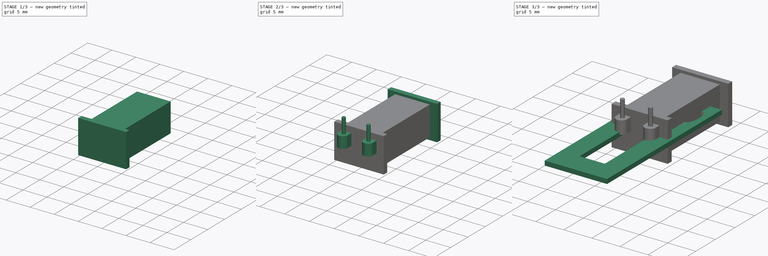
[diagram: build sequence overview — one tinted view per stage of 3, left to right]
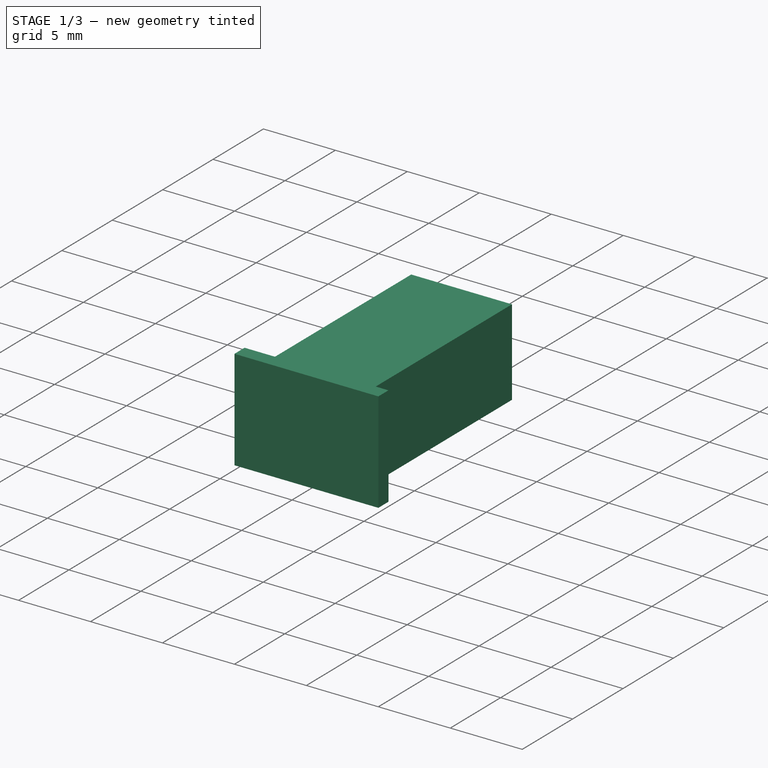
[diagram: stage 1 of 3 — iso view after this stage's code; geometry added in this stage tinted green]
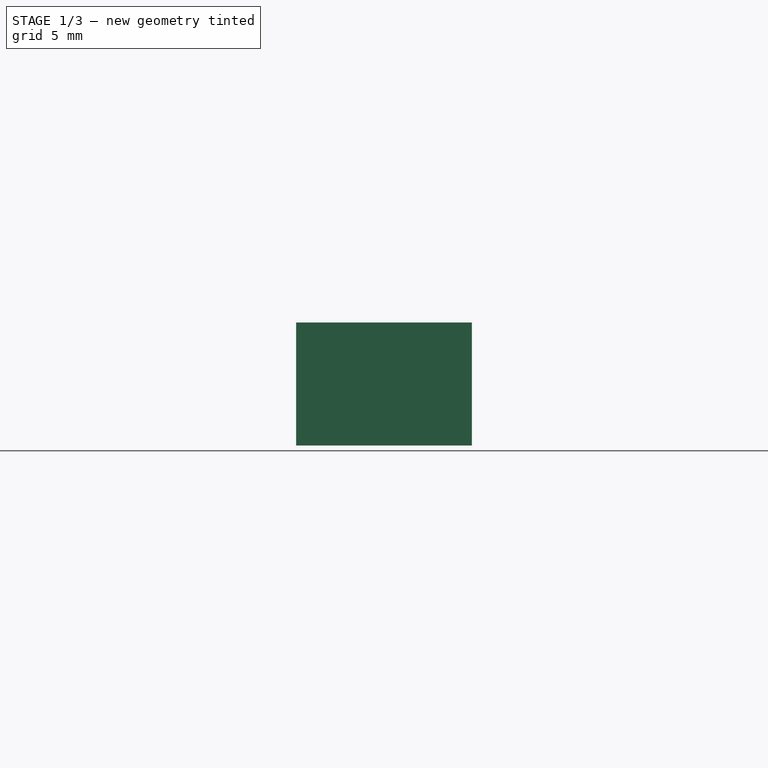
[diagram: stage 1 of 3 — front view after this stage's code; geometry added in this stage tinted green]
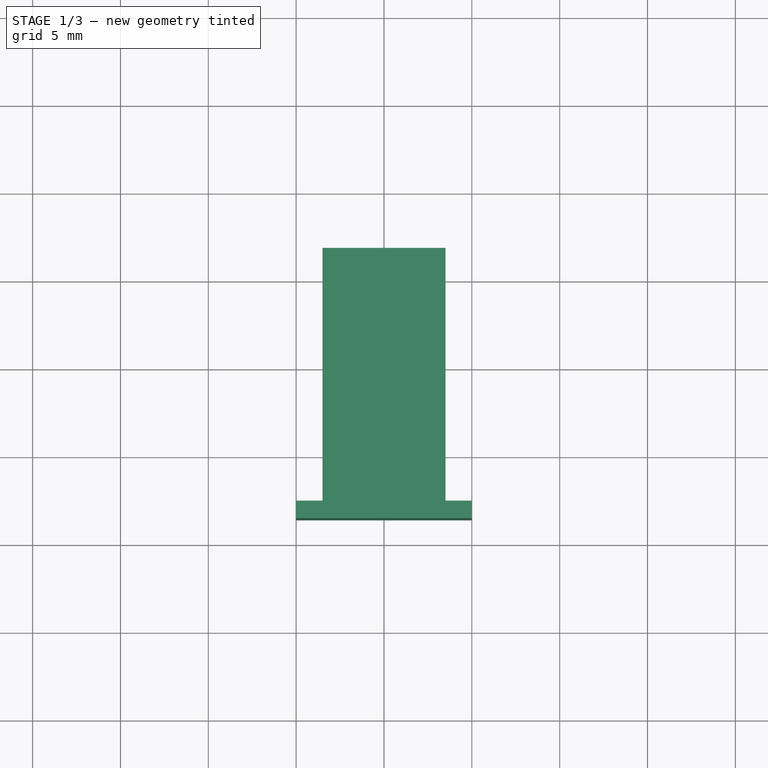
[diagram: stage 1 of 3 — top view after this stage's code; geometry added in this stage tinted green]
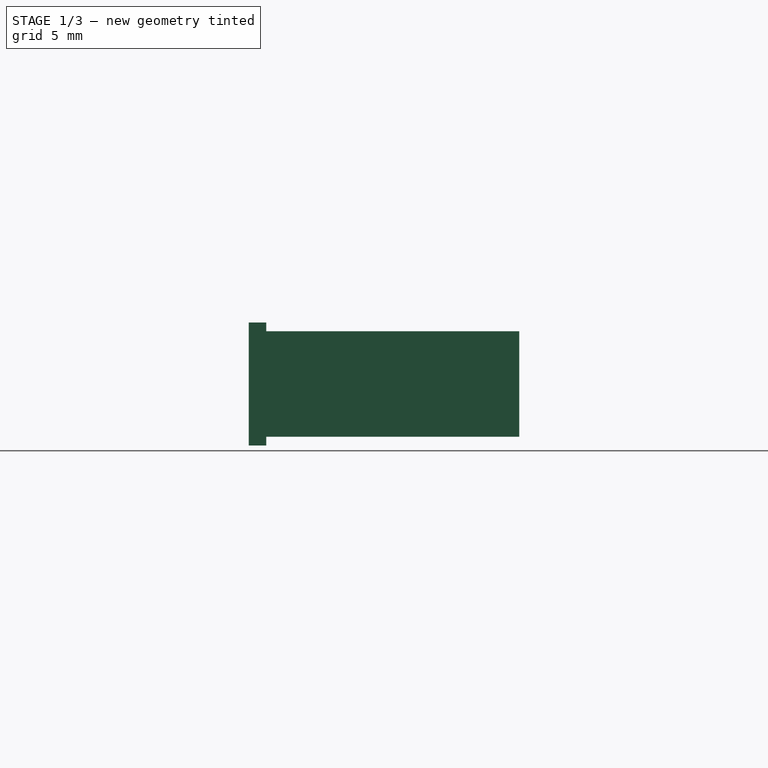
[diagram: stage 1 of 3 — right view after this stage's code; geometry added in this stage tinted green]
FCSTD DOCUMENT  (FreeCAD 0.19R24276 (Git))
Label: Clock Parts_Model_B
License: All rights reserved
LicenseURL: http://en.wikipedia.org/wiki/All_rights_reserved
objects: Sketcher::SketchObject×7, PartDesign::Pad×7, PartDesign::Body×3, Image::ImagePlane×1, App::Part×1
note: 24 computed .brp shape members not serialized (recipe doc carries the construction recipe); baked Part::Feature solids carry a one-line shape summary decoded from their .brp

FEATURE [Sketcher::SketchObject] Sketch
  FullyConstrained = false
  MapMode = 5
  Support = -> [XY_Plane001]
  sketch-geometry (24):
    g0: LineSegment StartX=5.55 StartY=4.4 StartZ=0 EndX=5.55 EndY=-24.8 EndZ=0
    g1: LineSegment StartX=5.55 StartY=-24.8 StartZ=0 EndX=-5.55 EndY=-24.8 EndZ=0
    g2: LineSegment StartX=-5.55 StartY=-24.8 StartZ=0 EndX=-5.55 EndY=4.4 EndZ=0
    g3: LineSegment StartX=-5.55 StartY=4.4 StartZ=0 EndX=-1.65 EndY=4.4 EndZ=0
    g4: LineSegment StartX=-1.65 StartY=4.4 StartZ=0 EndX=-1.65 EndY=2.85788 EndZ=0
    g5: LineSegment StartX=-1.66888 StartY=-7.8506 StartZ=0 EndX=-2.25 EndY=-8.61046 EndZ=0
    g6: LineSegment StartX=-2.25 StartY=-8.61046 StartZ=0 EndX=-2.25 EndY=-20.65 EndZ=0
    g7: LineSegment StartX=-2.25 StartY=-20.65 StartZ=0 EndX=2.25 EndY=-20.65 EndZ=0
    g8: LineSegment StartX=1.66888 StartY=-7.87451 StartZ=0 EndX=1.66888 EndY=-2.8469 EndZ=0
    g9: LineSegment StartX=1.65 StartY=4.4 StartZ=0 EndX=5.55 EndY=4.4 EndZ=0
    g10: ArcOfCircle CenterX=2e-16 CenterY=-2e-16 CenterZ=0 NormalX=0 NormalY=0 NormalZ=1 AngleXU=0 Radius=3.3 StartAngle=2.0944 EndAngle=2.45182
    g11: ArcOfCircle CenterX=2e-16 CenterY=-2e-16 CenterZ=0 NormalX=0 NormalY=0 NormalZ=1 AngleXU=0 Radius=4.5 StartAngle=2.65607 EndAngle=3.62711
    g12: LineSegment StartX=-3.97995 StartY=2.1 StartZ=0 EndX=-2.54558 EndY=2.1 EndZ=0
    g13: LineSegment StartX=-3.97995 StartY=-2.1 StartZ=0 EndX=-2.54558 EndY=-2.1 EndZ=0
    g14: LineSegment StartX=2.54558 StartY=2.1 StartZ=0 EndX=3.97995 EndY=2.1 EndZ=0
    g15: ArcOfCircle CenterX=2e-16 CenterY=-2e-16 CenterZ=0 NormalX=0 NormalY=0 NormalZ=1 AngleXU=0 Radius=3.3 StartAngle=3.83137 EndAngle=4.18217
    g16: ArcOfCircle CenterX=-0.000102365 CenterY=0.000124091 CenterZ=0 NormalX=0 NormalY=0 NormalZ=1 AngleXU=0 Radius=3.3 StartAngle=0.689726 EndAngle=1.04716
    g17: LineSegment StartX=2.54558 StartY=-2.1 StartZ=0 EndX=3.97995 EndY=-2.1 EndZ=0
    g18: ArcOfCircle CenterX=4e-16 CenterY=0 CenterZ=0 NormalX=0 NormalY=0 NormalZ=1 AngleXU=0 Radius=4.5 StartAngle=5.79767 EndAngle=6.7687
    g19: LineSegment StartX=1.65 StartY=2.85795 StartZ=0 EndX=1.65 EndY=4.4 EndZ=0
    g20: LineSegment StartX=-1.66888 StartY=-2.8469 StartZ=0 EndX=-1.66888 EndY=-7.8506 EndZ=0
    g21: ArcOfCircle CenterX=0.000105409 CenterY=-0.000123728 CenterZ=0 NormalX=0 NormalY=0 NormalZ=1 AngleXU=0 Radius=3.29984 StartAngle=5.2426 EndAngle=5.59342
    g22: LineSegment StartX=2.25 StartY=-8.61046 StartZ=0 EndX=2.25 EndY=-20.65 EndZ=0
    g23: LineSegment StartX=1.66888 StartY=-7.87451 StartZ=0 EndX=2.25 EndY=-8.61046 EndZ=0
  constraints (60):
    c: Vertical(g0)
    c: Coincident(g0,g1)
    c: Horizontal(g1)
    c: Coincident(g1,g2)
    c: Vertical(g2)
    c: Coincident(g2,g3)
    c: Horizontal(g3)
    c: Coincident(g3,g4)
    c: Vertical(g4)
    c: Coincident(g20,g5)
    c: Coincident(g5,g6)
    c: Vertical(g6)
    c: Coincident(g6,g7)
    c: Coincident(g19,g9)
    c: Coincident(g9,g0)
    c: Coincident(g11,g10)
    c: Radius(g10) = 3.3
    c: Radius(g11) = 4.5
    c: Horizontal(g12)
    c: Horizontal(g13)
    c: PointOnObject(g14,g10)
    c: Coincident(g18,g14)
    c: Coincident(g11,g12)
    c: Equal(g10,g15)
    c: Coincident(g10,g12)
    c: Coincident(g10,g15)
    c: Equal(g15,g16)
    c: Symmetric(g0,g2,g-2)
    c: Coincident(g23,g22)
    c: Vertical(g22)
    c: Coincident(g22,g7)
    c: Symmetric(g7,g6,g-2)
    c: DistanceX(g0) = 5.55
    c: DistanceY(g0) = -24.8
    c: Vertical(g19)
    c: Vertical(g8)
    c: Vertical(g20)
    c: Symmetric(g3,g9,g-2)
    c: DistanceX(g9) = 1.65
    c: DistanceY(g9) = 4.4
    c: DistanceX(g7) = 2.25
    c: DistanceY(g7) = -20.65
    c: Coincident(g10,g4)
    c: Coincident(g16,g19)
    c: Coincident(g14,g16)
    c: Coincident(g17,g18)
    c: Coincident(g11,g13)
    c: Coincident(g13,g15)
    c: Coincident(g17,g21)
    c: Coincident(g8,g21)
    c: Coincident(g15,g20)
    c: Symmetric(g14,g17,g-1)
    c: Symmetric(g10,g13,g-1)
    c: Coincident(g8,g23)
    c: DistanceY(g17,g14) = 4.2
    c: Symmetric(g13,g17,g-2)
    c: Radius(g18) = 4.5
    c: Symmetric(g14,g11,g-2)
    c: Symmetric(g17,g11,g-2)
    c: Symmetric(g8,g15,g-2)
FEATURE [Sketcher::SketchObject] Sketch001
  FullyConstrained = false
  MapMode = 5
  Support = -> [XY_Plane003]
  sketch-geometry (4):
    g0: LineSegment StartX=-3.5 StartY=6.82831 StartZ=0 EndX=3.5 EndY=6.82831 EndZ=0
    g1: LineSegment StartX=3.5 StartY=6.82831 StartZ=0 EndX=3.5 EndY=-7.57169 EndZ=0
    g2: LineSegment StartX=3.5 StartY=-7.57169 StartZ=0 EndX=-3.5 EndY=-7.57169 EndZ=0
    g3: LineSegment StartX=-3.5 StartY=-7.57169 StartZ=0 EndX=-3.5 EndY=6.82831 EndZ=0
  constraints (9):
    c: Coincident(g0,g1)
    c: Coincident(g1,g2)
    c: Coincident(g2,g3)
    c: Coincident(g3,g0)
    c: Vertical(g3)
    c: DistanceY(g1,g1) = 14.4
    c: DistanceX(g2,g2) = 7
    c: Symmetric(g0,g0,g-2)
    c: Horizontal(g2)
FEATURE [PartDesign::Pad] Pad001
  Direction = (1,1,1)
  Length = 6
  Length2 = 100
  Midplane = true
  Profile = -> Sketch001
  Type = 0
FEATURE [Sketcher::SketchObject] Sketch002
  ExternalGeometry = -> [Pad001]
  FullyConstrained = false
  MapMode = 5
  Placement = pos=(0,-7.57169,0) rot=(1,0,0;1.5708rad)
  Support = -> [Pad001]
  sketch-geometry (4):
    g0: LineSegment StartX=-5 StartY=3.5 StartZ=0 EndX=5 EndY=3.5 EndZ=0
    g1: LineSegment StartX=5 StartY=3.5 StartZ=0 EndX=5 EndY=-3.5 EndZ=0
    g2: LineSegment StartX=5 StartY=-3.5 StartZ=0 EndX=-5 EndY=-3.5 EndZ=0
    g3: LineSegment StartX=-5 StartY=-3.5 StartZ=0 EndX=-5 EndY=3.5 EndZ=0
  constraints (10):
    c: Coincident(g0,g1)
    c: Coincident(g1,g2)
    c: Coincident(g2,g3)
    c: Coincident(g3,g0)
    c: Horizontal(g0)
    c: Vertical(g1)
    c: Vertical(g3)
    c: DistanceY(g1,g1) = 7
    c: DistanceX(g2,g2) = 10
    c: Symmetric(g2,g1,g-2)
FEATURE [PartDesign::Pad] Pad002
  BaseFeature = -> Pad001
  Direction = (1,1,1)
  Length = 1
  Length2 = 100
  Profile = -> Sketch002
  Type = 0
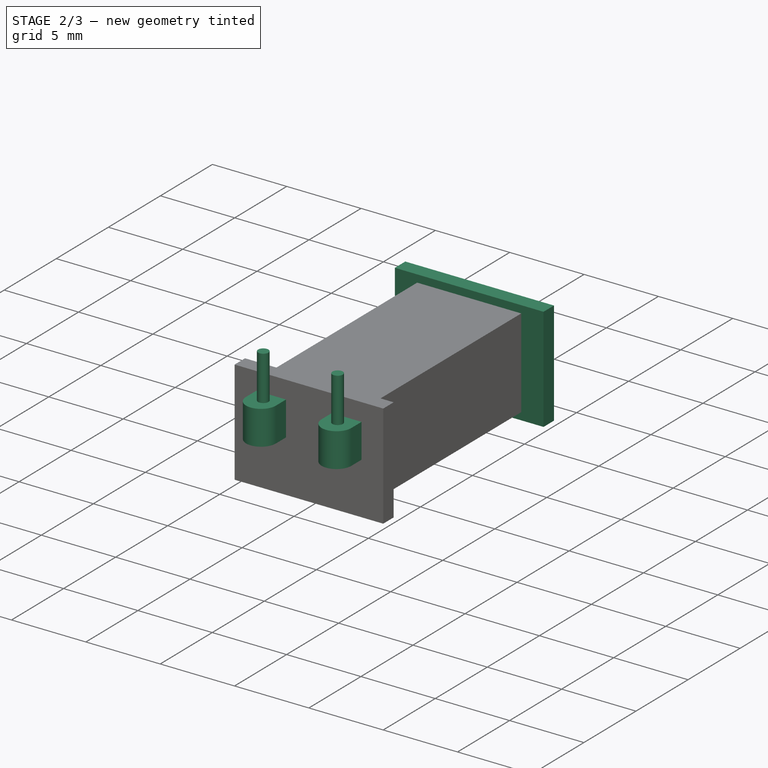
[diagram: stage 2 of 3 — iso view after this stage's code; geometry added in this stage tinted green]
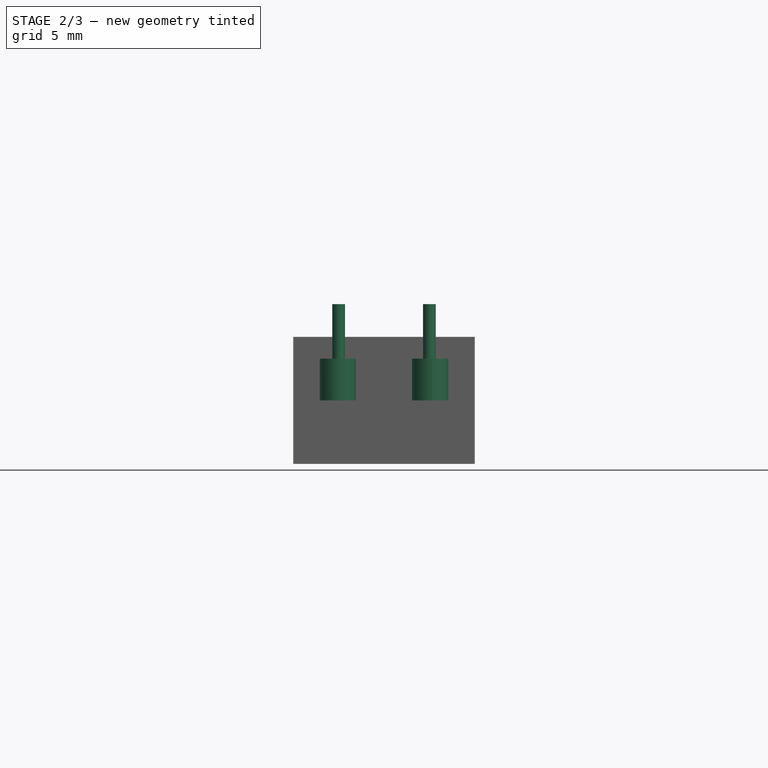
[diagram: stage 2 of 3 — front view after this stage's code; geometry added in this stage tinted green]
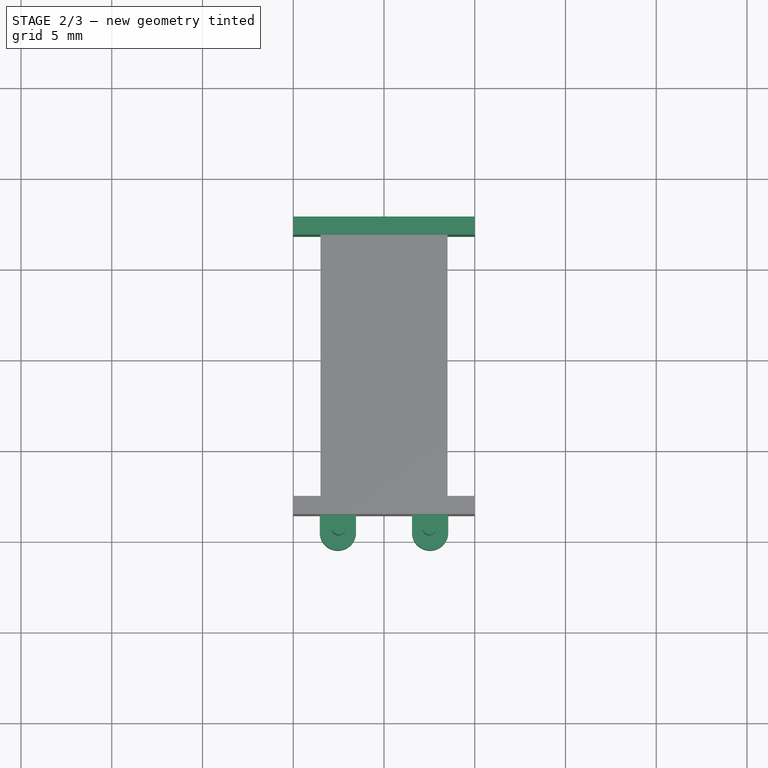
[diagram: stage 2 of 3 — top view after this stage's code; geometry added in this stage tinted green]
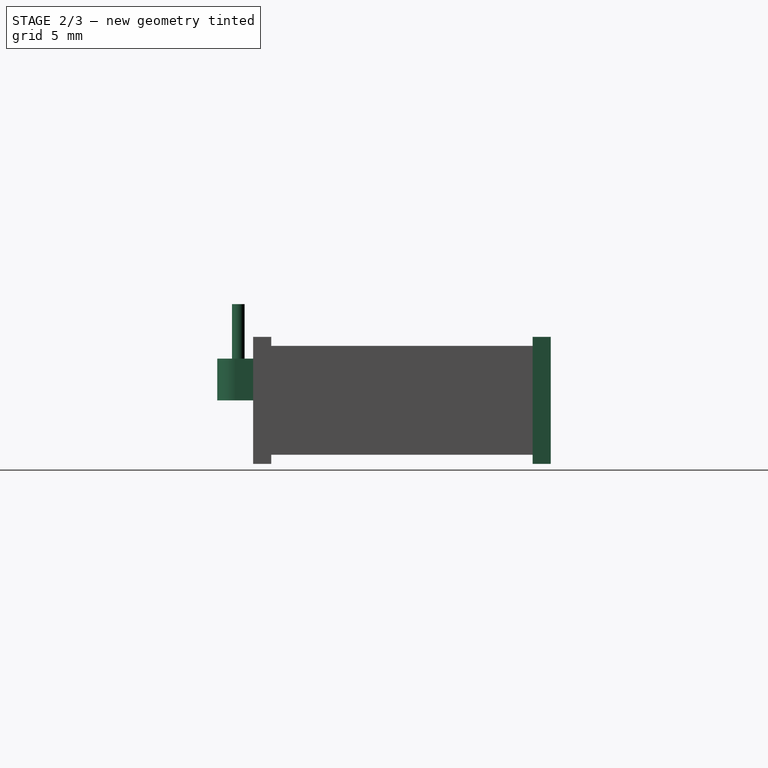
[diagram: stage 2 of 3 — right view after this stage's code; geometry added in this stage tinted green]
FEATURE [Sketcher::SketchObject] Sketch003
  ExternalGeometry = -> [Pad002]
  FullyConstrained = false
  MapMode = 5
  Placement = pos=(0,6.82831,0) rot=(0,0.707107,0.707107;3.14159rad)
  Support = -> [Pad002]
  sketch-geometry (4):
    g0: LineSegment StartX=-5 StartY=3.5 StartZ=0 EndX=5 EndY=3.5 EndZ=0
    g1: LineSegment StartX=5 StartY=3.5 StartZ=0 EndX=5 EndY=-3.5 EndZ=0
    g2: LineSegment StartX=5 StartY=-3.5 StartZ=0 EndX=-5 EndY=-3.5 EndZ=0
    g3: LineSegment StartX=-5 StartY=-3.5 StartZ=0 EndX=-5 EndY=3.5 EndZ=0
  constraints (10):
    c: Coincident(g0,g1)
    c: Coincident(g1,g2)
    c: Coincident(g2,g3)
    c: Coincident(g3,g0)
    c: Horizontal(g0)
    c: Vertical(g1)
    c: Vertical(g3)
    c: DistanceY(g3,g3) = 7
    c: DistanceX(g2,g2) = 10
    c: Symmetric(g1,g2,g-2)
FEATURE [PartDesign::Pad] Pad003
  BaseFeature = -> Pad002
  Direction = (1,1,1)
  Length = 1
  Length2 = 100
  Profile = -> Sketch003
  Type = 0
FEATURE [PartDesign::Body] Body002  label="Magnet"
  Group = -> [Sketch004,Pad004]
  Origin = -> Origin005
  Tip = -> Pad004
FEATURE [Image::ImagePlane] ImagePlane
  Placement = pos=(1,-10,0) rot=(0,0,1;0rad)
  XSize = 15.8049
  YSize = 30.5983
FEATURE [Sketcher::SketchObject] Sketch005
  ExternalGeometry = -> [Pad003]
  FullyConstrained = false
  MapMode = 5
  Support = -> [XY_Plane003]
  sketch-geometry (8):
    g0: ArcOfCircle CenterX=-2.53973 CenterY=-9.54527 CenterZ=0 NormalX=0 NormalY=0 NormalZ=1 AngleXU=0 Radius=1 StartAngle=3.14159 EndAngle=6.28319
    g1: LineSegment StartX=-3.53973 StartY=-8.57169 StartZ=0 EndX=-3.53973 EndY=-9.54527 EndZ=0
    g2: LineSegment StartX=-1.53973 StartY=-8.57169 StartZ=0 EndX=-1.53973 EndY=-9.54527 EndZ=0
    g3: LineSegment StartX=-3.53973 StartY=-8.57169 StartZ=0 EndX=-1.53973 EndY=-8.57169 EndZ=0
    g4: ArcOfCircle CenterX=2.53973 CenterY=-9.54527 CenterZ=0 NormalX=0 NormalY=0 NormalZ=1 AngleXU=0 Radius=1 StartAngle=3.14159 EndAngle=6.28319
    g5: LineSegment StartX=3.53973 StartY=-8.57169 StartZ=0 EndX=3.53973 EndY=-9.54527 EndZ=0
    g6: LineSegment StartX=1.53973 StartY=-8.57169 StartZ=0 EndX=1.53973 EndY=-9.54527 EndZ=0
    g7: LineSegment StartX=3.53973 StartY=-8.57169 StartZ=0 EndX=1.53973 EndY=-8.57169 EndZ=0
  constraints (17):
    c: Tangent(g1,g0) = -1.5708
    c: Tangent(g2,g0) = 1.5708
    c: Vertical(g1)
    c: Coincident(g3,g1)
    c: Coincident(g3,g2)
    c: Horizontal(g3)
    c: Vertical(g2)
    c: Radius(g0) = 1
    c: PointOnObject(g1,g-3)
    c: Tangent(g5,g4) = 1.5708
    c: Tangent(g6,g4) = -1.5708
    c: Vertical(g5)
    c: Coincident(g7,g5)
    c: Coincident(g7,g6)
    c: Horizontal(g7)
    c: Vertical(g6)
    c: Radius(g4) = 1
FEATURE [PartDesign::Pad] Pad005
  BaseFeature = -> Pad003
  Direction = (1,1,1)
  Length = 2.3
  Length2 = 100
  Profile = -> Sketch005
  Type = 0
FEATURE [Sketcher::SketchObject] Sketch006
  FullyConstrained = false
  MapMode = 5
  Placement = pos=(0,0,2.3) rot=(0,0,1;0rad)
  Support = -> [Pad005]
  sketch-geometry (2):
    g0: Circle CenterX=-2.5 CenterY=-9.38461 CenterZ=0 NormalX=0 NormalY=0 NormalZ=1 AngleXU=0 Radius=0.35
    g1: Circle CenterX=2.5 CenterY=-9.38461 CenterZ=0 NormalX=0 NormalY=0 NormalZ=1 AngleXU=0 Radius=0.35
  constraints (4):
    c: Symmetric(g1,g0,g-2)
    c: Radius(g1) = 0.35
    c: Equal(g1,g0)
    c: DistanceX(g0,g1) = 5
FEATURE [PartDesign::Pad] Pad006
  BaseFeature = -> Pad005
  Direction = (1,1,1)
  Length = 3
  Length2 = 100
  Profile = -> Sketch006
  Type = 0
FEATURE [PartDesign::Body] Body001  label="Coil"
  Group = -> [Sketch001,Pad001,Sketch002,Pad002,Sketch003,Pad003,Sketch005,Pad005,Sketch006,Pad006]
  Origin = -> Origin003
  Placement = pos=(3.5,-13,0) rot=(0,0,1;0rad)
  Tip = -> Pad006
FEATURE [App::Part] Part  label="Clock Parts"
  Group = -> [Body,Body001,Body002]
  Origin = -> Origin
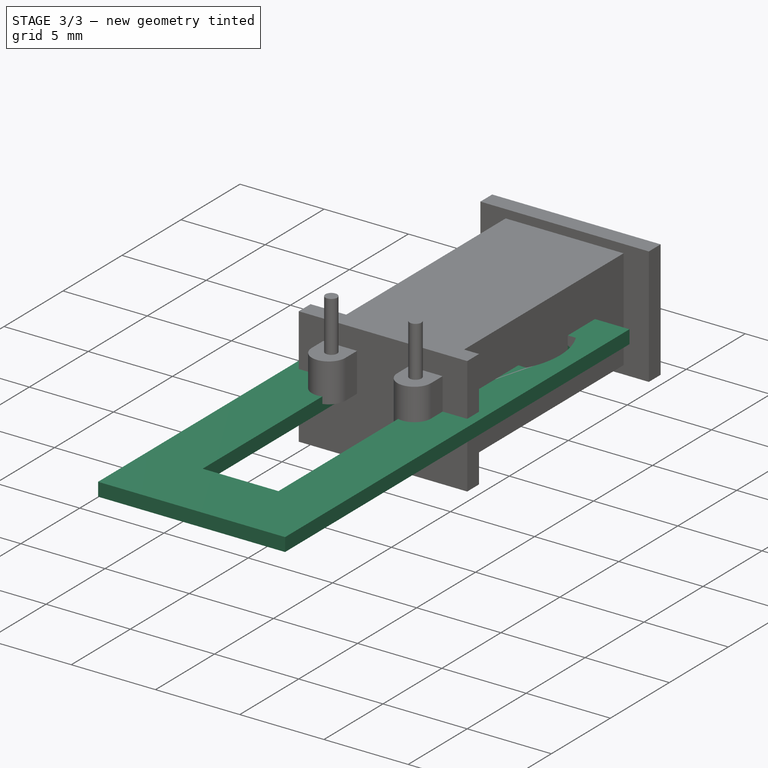
[diagram: stage 3 of 3 — iso view after this stage's code; geometry added in this stage tinted green]
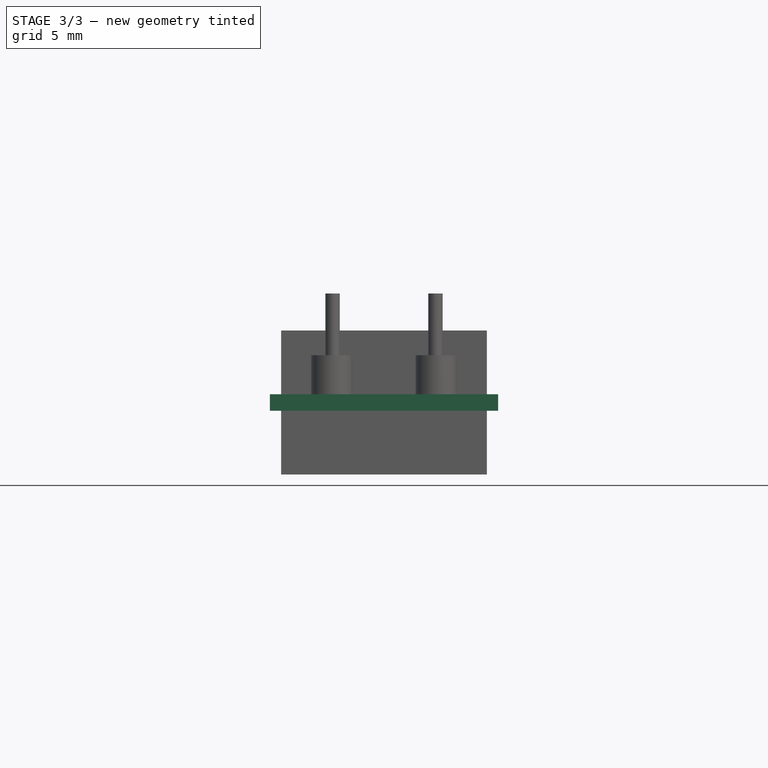
[diagram: stage 3 of 3 — front view after this stage's code; geometry added in this stage tinted green]
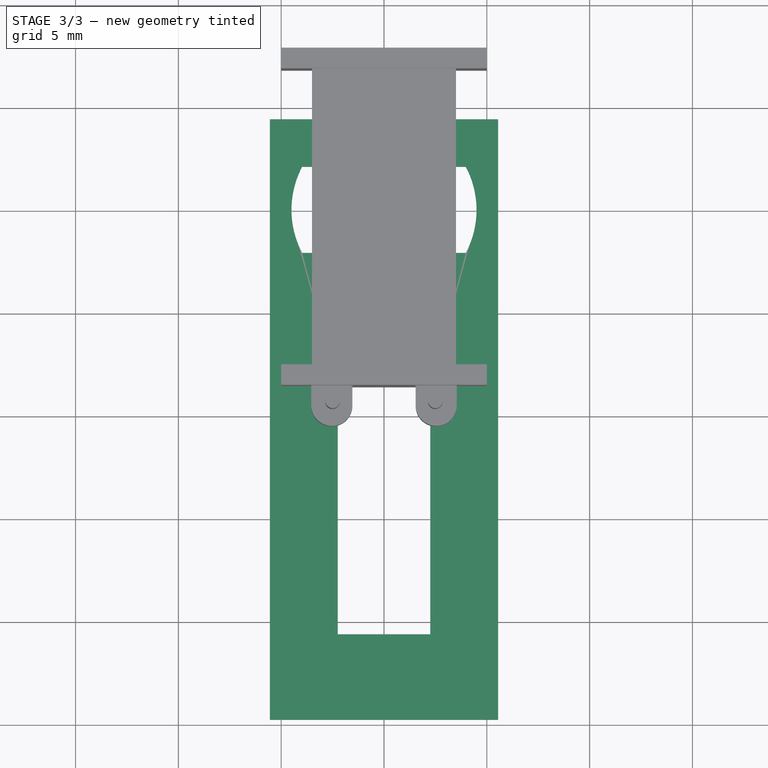
[diagram: stage 3 of 3 — top view after this stage's code; geometry added in this stage tinted green]
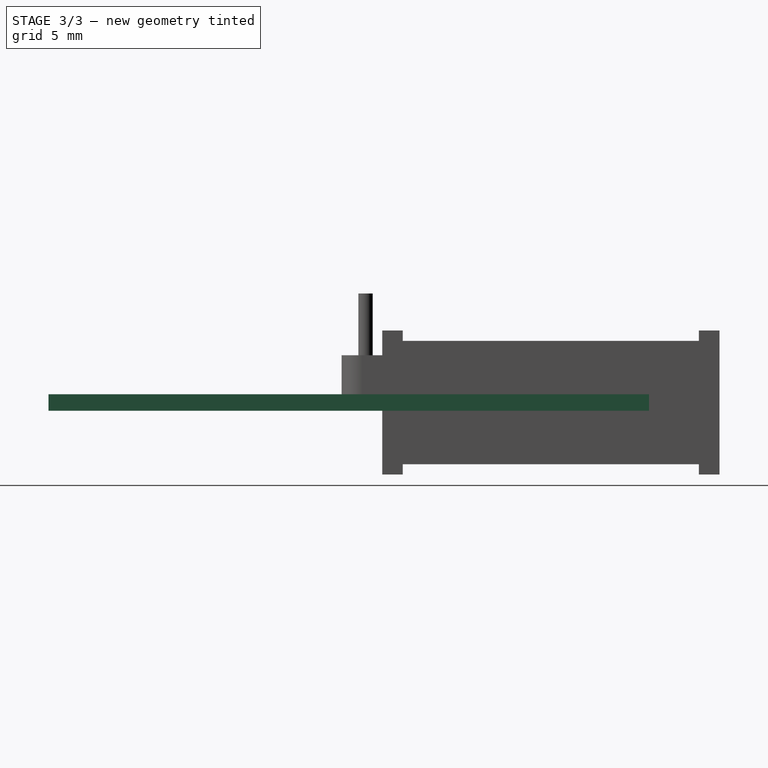
[diagram: stage 3 of 3 — right view after this stage's code; geometry added in this stage tinted green]
FEATURE [Sketcher::SketchObject] Sketch004
  FullyConstrained = true
  MapMode = 5
  Support = -> [XY_Plane005]
  sketch-geometry (2):
    g0: Circle CenterX=0 CenterY=0 CenterZ=0 NormalX=0 NormalY=0 NormalZ=1 AngleXU=0 Radius=1.025
    g1: Circle CenterX=0 CenterY=0 CenterZ=0 NormalX=0 NormalY=0 NormalZ=1 AngleXU=0 Radius=2.5
  constraints (4):
    c: Coincident(g0,g-1)
    c: Coincident(g1,g0)
    c: Radius(g1) = 2.5
    c: Radius(g0) = 1.025
FEATURE [PartDesign::Pad] Pad
  Direction = (1,1,1)
  Length = 0.8
  Length2 = 100
  Midplane = true
  Profile = -> Sketch
  Type = 0
FEATURE [PartDesign::Body] Body  label="Plate"
  Group = -> [Sketch,Pad]
  Origin = -> Origin001
  Tip = -> Pad
FEATURE [PartDesign::Pad] Pad004
  Direction = (1,1,1)
  Length = 2.4
  Length2 = 100
  Midplane = true
  Profile = -> Sketch004
  Type = 0
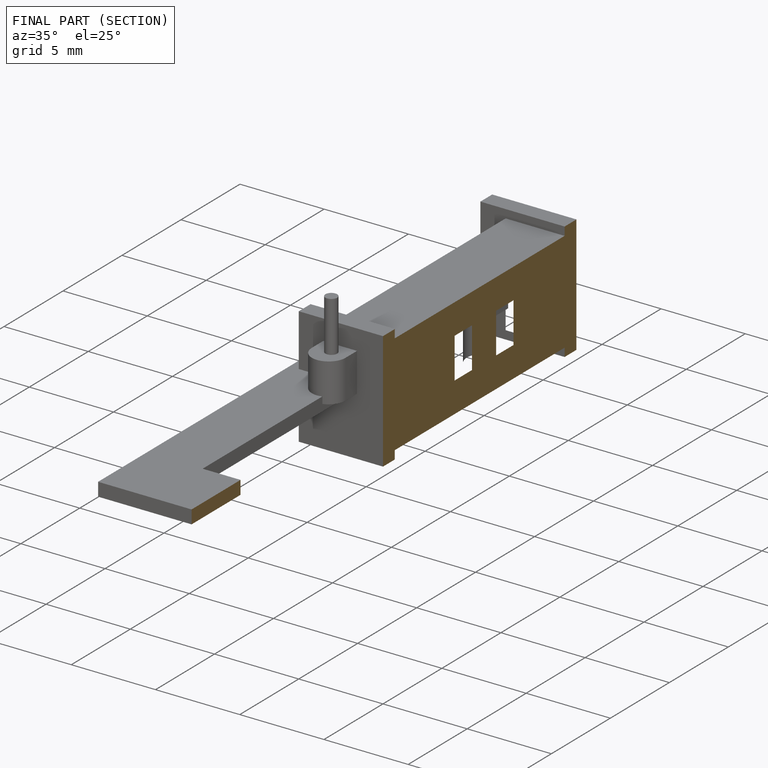
[diagram: finished part — half-section view (interior)]
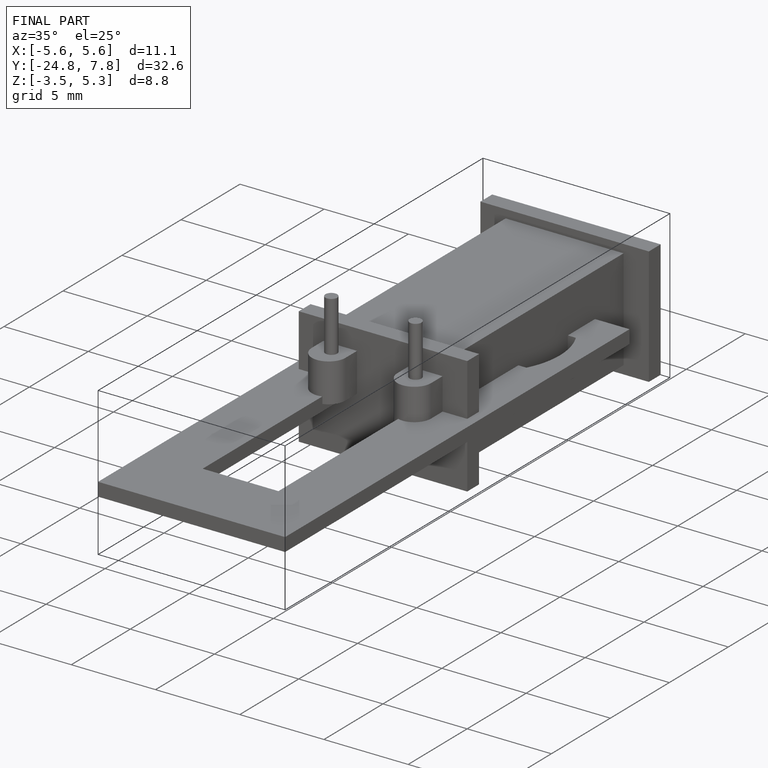
[diagram: finished part — iso view with bounding-box wireframe]
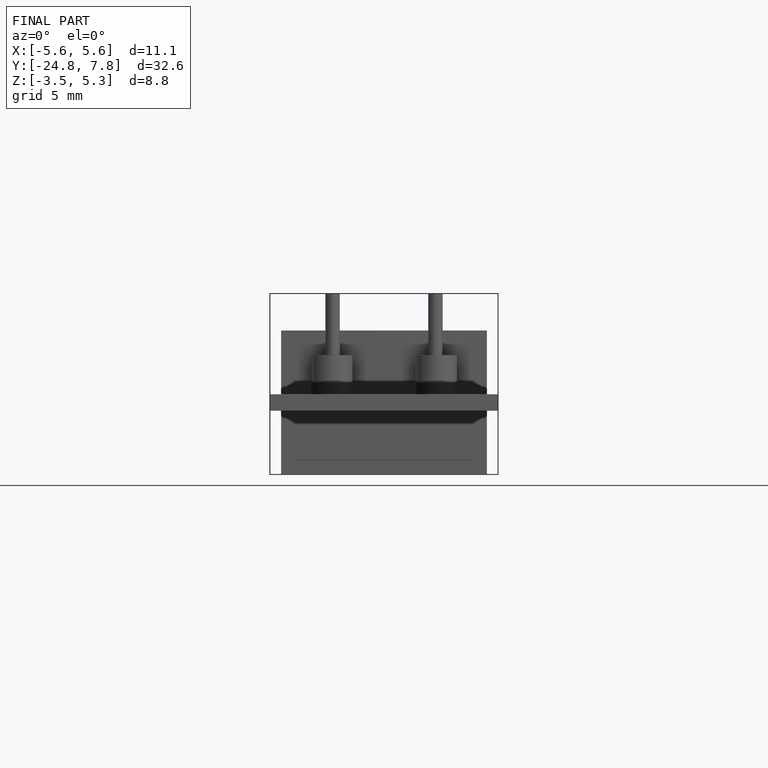
[diagram: finished part — front view with bounding-box wireframe]
